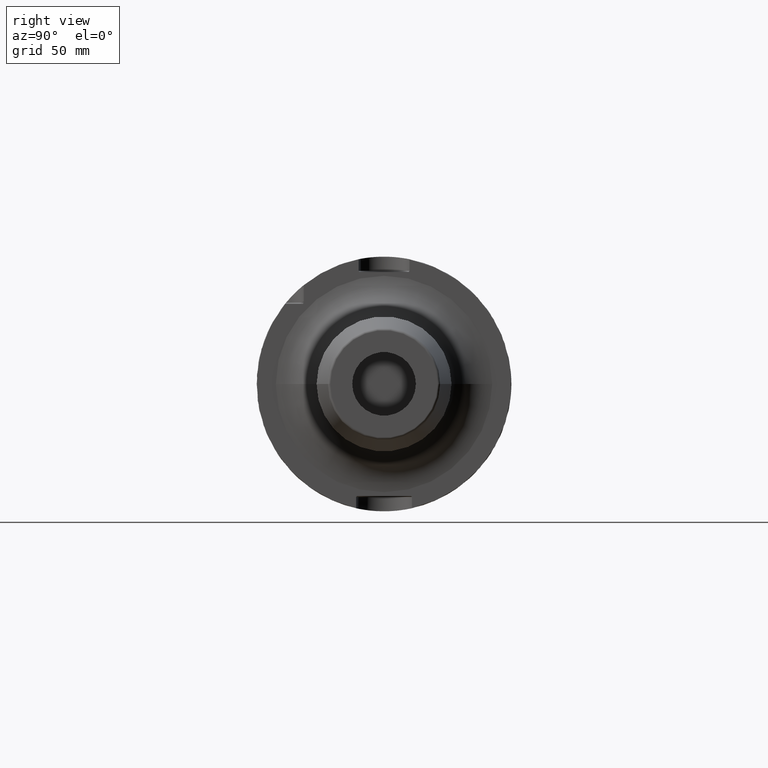
[diagram: clean part render]
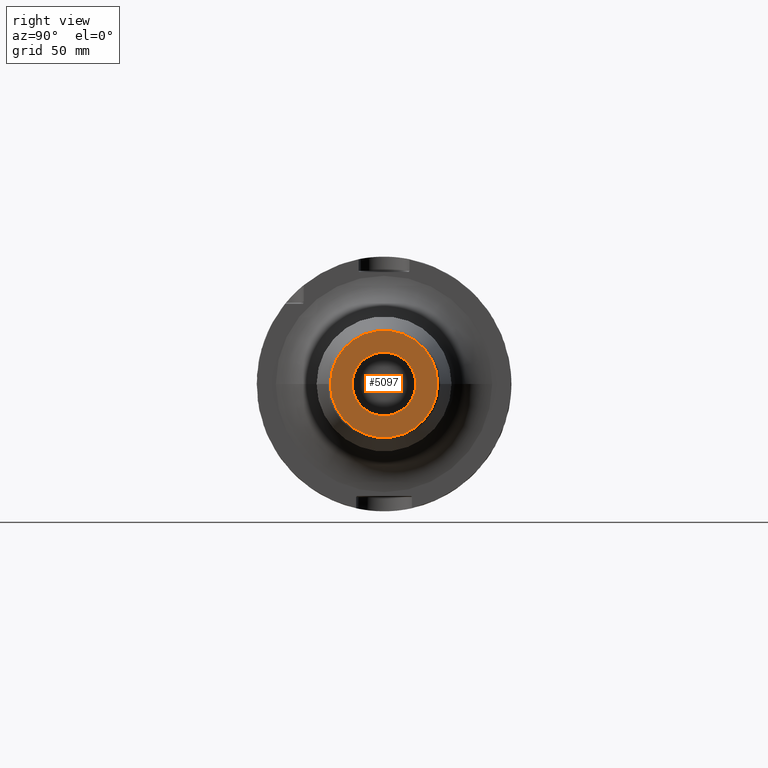
[diagram: same view with one face highlighted and labeled with its STEP entity id]
A machine part, right view. The second image highlights one B-rep face of the part: STEP entity #5097.
In plain terms, the highlighted planar face has unit normal (1, 0, 0).
Its self-contained STEP definition (entity closure, byte-faithful):
#1876=CARTESIAN_POINT('',(2.E2,0.E0,0.E0));
#1877=DIRECTION('',(1.E0,0.E0,0.E0));
#1878=DIRECTION('',(0.E0,1.E0,0.E0));
#1879=AXIS2_PLACEMENT_3D('',#1876,#1877,#1878);
#1881=CARTESIAN_POINT('',(2.E2,0.E0,0.E0));
#1882=DIRECTION('',(1.E0,0.E0,0.E0));
#1883=DIRECTION('',(0.E0,-1.E0,0.E0));
#1884=AXIS2_PLACEMENT_3D('',#1881,#1882,#1883);
#1886=CARTESIAN_POINT('',(2.E2,0.E0,0.E0));
#1887=DIRECTION('',(-1.E0,0.E0,0.E0));
#1888=DIRECTION('',(0.E0,1.E0,0.E0));
#1889=AXIS2_PLACEMENT_3D('',#1886,#1887,#1888);
#1891=CARTESIAN_POINT('',(2.E2,0.E0,0.E0));
#1892=DIRECTION('',(-1.E0,0.E0,0.E0));
#1893=DIRECTION('',(0.E0,-1.E0,0.E0));
#1894=AXIS2_PLACEMENT_3D('',#1891,#1892,#1893);
#3133=CARTESIAN_POINT('',(2.E2,1.25E1,0.E0));
#3134=VERTEX_POINT('',#3133);
#3135=CARTESIAN_POINT('',(2.E2,-1.25E1,0.E0));
#3136=VERTEX_POINT('',#3135);
#3149=CARTESIAN_POINT('',(2.E2,2.107560950834E1,0.E0));
#3150=CARTESIAN_POINT('',(2.E2,-2.107560950834E1,0.E0));
#3151=VERTEX_POINT('',#3149);
#3152=VERTEX_POINT('',#3150);
#5082=CARTESIAN_POINT('',(2.E2,0.E0,0.E0));
#5083=DIRECTION('',(1.E0,0.E0,0.E0));
#5084=DIRECTION('',(0.E0,-1.E0,0.E0));
#5085=AXIS2_PLACEMENT_3D('',#5082,#5083,#5084);
#5086=PLANE('',#5085);
#5087=ORIENTED_EDGE('',*,*,#5049,.T.);
#5088=ORIENTED_EDGE('',*,*,#5064,.T.);
#5089=EDGE_LOOP('',(#5087,#5088));
#5090=FACE_OUTER_BOUND('',#5089,.F.);
#5092=ORIENTED_EDGE('',*,*,#5091,.T.);
#5094=ORIENTED_EDGE('',*,*,#5093,.T.);
#5095=EDGE_LOOP('',(#5092,#5094));
#5096=FACE_BOUND('',#5095,.F.);
#5097=ADVANCED_FACE('',(#5090,#5096),#5086,.T.);
#1880=CIRCLE('',#1879,1.25E1);
#1885=CIRCLE('',#1884,1.25E1);
#1890=CIRCLE('',#1889,2.107560950834E1);
#1895=CIRCLE('',#1894,2.107560950834E1);
#5049=EDGE_CURVE('',#3151,#3152,#1890,.T.);
#5064=EDGE_CURVE('',#3152,#3151,#1895,.T.);
#5091=EDGE_CURVE('',#3134,#3136,#1880,.T.);
#5093=EDGE_CURVE('',#3136,#3134,#1885,.T.);